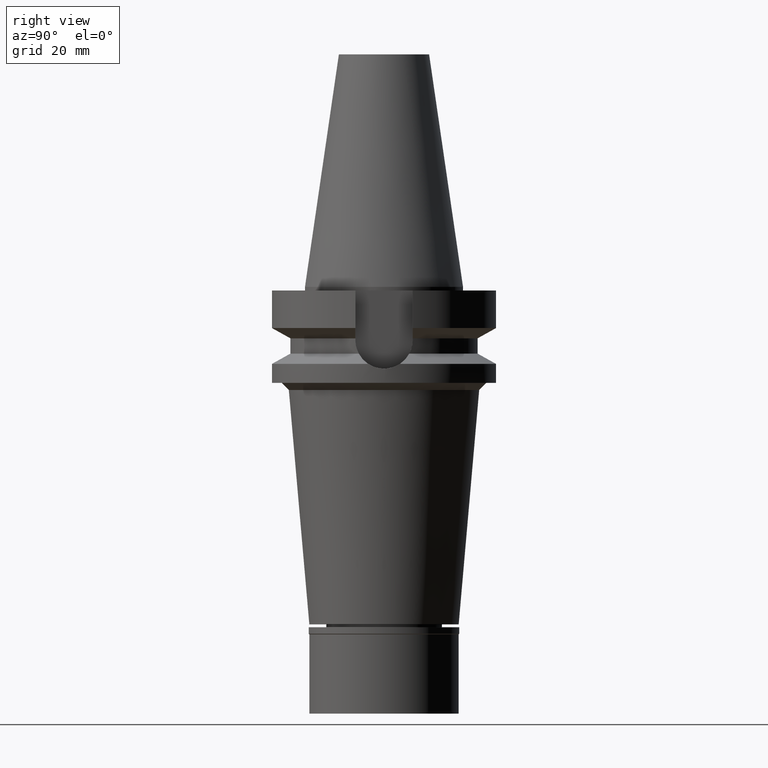
[diagram: clean part render]
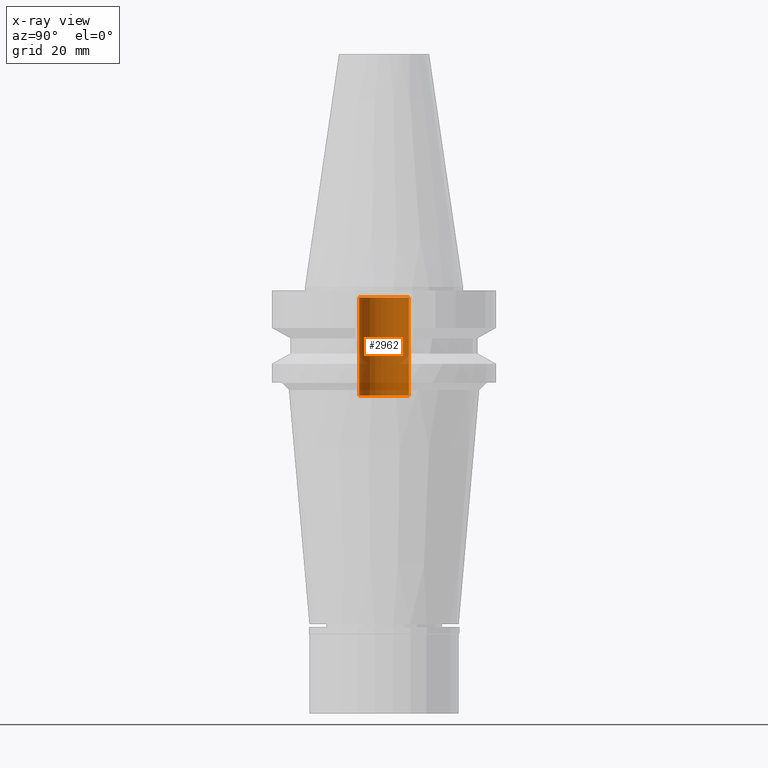
[diagram: x-ray — body ghosted, one internal face saturated and labeled with its STEP entity id]
A machine part, right view, then the same camera in x-ray: the body is ghosted and one INTERNAL B-rep face — a face not visible from any outside direction — is saturated and labeled: STEP entity #2962.
In plain terms, the highlighted cylindrical surface (edge-blend (fillet) strip) has radius 7 mm, axis along (0, 0, -1).
Its self-contained STEP definition (entity closure, byte-faithful):
#291 = VERTEX_POINT ( 'NONE', #2092 ) ;
#406 = DIRECTION ( 'NONE',  ( 0.0000000000000000000, 0.0000000000000000000, 1.000000000000000000 ) ) ;
#603 = DIRECTION ( 'NONE',  ( 0.0000000000000000000, 1.000000000000000000, 0.0000000000000000000 ) ) ;
#714 = CARTESIAN_POINT ( 'NONE',  ( 0.0000000000000000000, -7.000000000000000000, -3.000000000000000000 ) ) ;
#846 = EDGE_CURVE ( 'NONE', #2271, #291, #1892, .T. ) ;
#931 = CYLINDRICAL_SURFACE ( 'NONE', #1269, 7.000000000000000000 ) ;
#1089 = DIRECTION ( 'NONE',  ( 0.0000000000000000000, -1.000000000000000000, 0.0000000000000000000 ) ) ;
#1162 = AXIS2_PLACEMENT_3D ( 'NONE', #1603, #3048, #1089 ) ;
#1269 = AXIS2_PLACEMENT_3D ( 'NONE', #1919, #2649, #2152 ) ;
#1320 = LINE ( 'NONE', #2590, #1430 ) ;
#1395 = EDGE_CURVE ( 'NONE', #2271, #1604, #1320, .T. ) ;
#1402 = VERTEX_POINT ( 'NONE', #2376 ) ;
#1430 = VECTOR ( 'NONE', #406, 1000.000000000000000 ) ;
#1462 = ORIENTED_EDGE ( 'NONE', *, *, #846, .T. ) ;
#1603 = CARTESIAN_POINT ( 'NONE',  ( 0.0000000000000000000, 2.134498138573999781E-14, -30.59999999999999787 ) ) ;
#1604 = VERTEX_POINT ( 'NONE', #714 ) ;
#1661 = DIRECTION ( 'NONE',  ( 0.0000000000000000000, 0.0000000000000000000, 1.000000000000000000 ) ) ;
#1800 = DIRECTION ( 'NONE',  ( 0.0000000000000000000, 0.0000000000000000000, 1.000000000000000000 ) ) ;
#1892 = CIRCLE ( 'NONE', #1162, 7.000000000000000000 ) ;
#1919 = CARTESIAN_POINT ( 'NONE',  ( 0.0000000000000000000, 2.134498138573999781E-14, 74.29500000000000171 ) ) ;
#1940 = CARTESIAN_POINT ( 'NONE',  ( 0.0000000000000000000, 7.000000000000000000, -30.59999999999999787 ) ) ;
#2092 = CARTESIAN_POINT ( 'NONE',  ( 0.0000000000000000000, 7.000000000000000000, -30.59999999999999787 ) ) ;
#2152 = DIRECTION ( 'NONE',  ( 0.0000000000000000000, -1.000000000000000000, 0.0000000000000000000 ) ) ;
#2194 = ORIENTED_EDGE ( 'NONE', *, *, #2420, .T. ) ;
#2197 = AXIS2_PLACEMENT_3D ( 'NONE', #2336, #1800, #603 ) ;
#2218 = CARTESIAN_POINT ( 'NONE',  ( 0.0000000000000000000, -7.000000000000000000, -30.59999999999999787 ) ) ;
#2271 = VERTEX_POINT ( 'NONE', #2218 ) ;
#2336 = CARTESIAN_POINT ( 'NONE',  ( 0.0000000000000000000, 2.134498138573999781E-14, -3.000000000000000000 ) ) ;
#2338 = EDGE_LOOP ( 'NONE', ( #2194, #2757, #1462, #2465 ) ) ;
#2356 = CIRCLE ( 'NONE', #2197, 7.000000000000000000 ) ;
#2376 = CARTESIAN_POINT ( 'NONE',  ( 0.0000000000000000000, 7.000000000000000000, -3.000000000000000000 ) ) ;
#2420 = EDGE_CURVE ( 'NONE', #1402, #1604, #2356, .T. ) ;
#2465 = ORIENTED_EDGE ( 'NONE', *, *, #2517, .T. ) ;
#2508 = VECTOR ( 'NONE', #1661, 1000.000000000000000 ) ;
#2517 = EDGE_CURVE ( 'NONE', #291, #1402, #2855, .T. ) ;
#2590 = CARTESIAN_POINT ( 'NONE',  ( 0.0000000000000000000, -7.000000000000000000, -30.59999999999999787 ) ) ;
#2649 = DIRECTION ( 'NONE',  ( 0.0000000000000000000, 0.0000000000000000000, -1.000000000000000000 ) ) ;
#2757 = ORIENTED_EDGE ( 'NONE', *, *, #1395, .F. ) ;
#2855 = LINE ( 'NONE', #1940, #2508 ) ;
#2881 = FACE_OUTER_BOUND ( 'NONE', #2338, .T. ) ;
#2962 = ADVANCED_FACE ( 'NONE', ( #2881 ), #931, .F. ) ;
#3048 = DIRECTION ( 'NONE',  ( 0.0000000000000000000, 0.0000000000000000000, -1.000000000000000000 ) ) ;